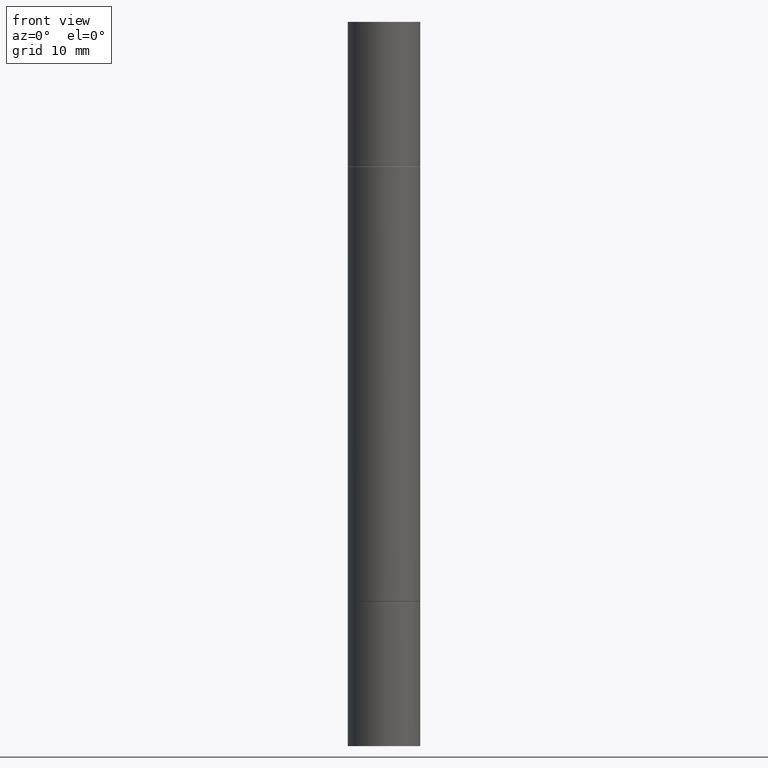
[diagram: clean part render]
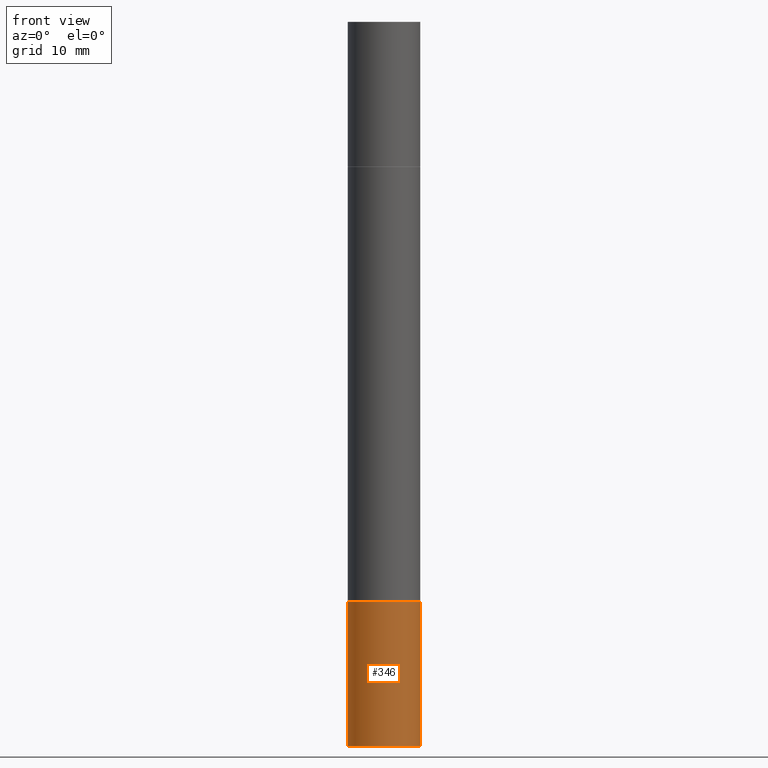
[diagram: same view with one face highlighted and labeled with its STEP entity id]
A machine part, front view. The second image highlights one B-rep face of the part: STEP entity #346.
In plain terms, the highlighted cylindrical surface (edge-blend (fillet) strip) has radius 3.175 mm, axis along (-0, 0, 1).
Its self-contained STEP definition (entity closure, byte-faithful):
#31 = DIRECTION ( 'NONE',  ( 1.000000000000000000, -6.982962677686270655E-15, 0.000000000000000000 ) ) ;
#42 = DIRECTION ( 'NONE',  ( -2.445468806185136877E-29, 3.491481338843145188E-15, 1.000000000000000000 ) ) ;
#45 = AXIS2_PLACEMENT_3D ( 'NONE', #399, #57, #559 ) ;
#57 = DIRECTION ( 'NONE',  ( -2.445468806185136597E-29, 3.491481338843145583E-15, 1.000000000000000000 ) ) ;
#59 = EDGE_CURVE ( 'NONE', #156, #207, #382, .T. ) ;
#91 = CARTESIAN_POINT ( 'NONE',  ( 0.1250000000000000000, -7.855833012397075293E-15, -2.000000000000000000 ) ) ;
#131 = ORIENTED_EDGE ( 'NONE', *, *, #278, .T. ) ;
#156 = VERTEX_POINT ( 'NONE', #172 ) ;
#166 = EDGE_CURVE ( 'NONE', #383, #156, #600, .T. ) ;
#172 = CARTESIAN_POINT ( 'NONE',  ( -0.1250000000000000000, -6.967654592696952427E-15, -2.000000000000000000 ) ) ;
#201 = EDGE_LOOP ( 'NONE', ( #357, #131, #521, #508 ) ) ;
#207 = VERTEX_POINT ( 'NONE', #91 ) ;
#239 = EDGE_CURVE ( 'NONE', #654, #207, #248, .T. ) ;
#248 = LINE ( 'NONE', #400, #275 ) ;
#274 = DIRECTION ( 'NONE',  ( -2.445468806185136597E-29, 3.491481338843145583E-15, 1.000000000000000000 ) ) ;
#275 = VECTOR ( 'NONE', #619, 39.37007874015748143 ) ;
#278 = EDGE_CURVE ( 'NONE', #383, #654, #563, .T. ) ;
#283 = AXIS2_PLACEMENT_3D ( 'NONE', #545, #552, #31 ) ;
#346 = ADVANCED_FACE ( 'NONE', ( #453 ), #560, .T. ) ;
#357 = ORIENTED_EDGE ( 'NONE', *, *, #166, .F. ) ;
#382 = CIRCLE ( 'NONE', #45, 0.1250000000000000000 ) ;
#383 = VERTEX_POINT ( 'NONE', #542 ) ;
#398 = CARTESIAN_POINT ( 'NONE',  ( 0.1250000000000000000, -9.601573681818648281E-15, -2.500000000000000000 ) ) ;
#399 = CARTESIAN_POINT ( 'NONE',  ( 4.890937612370273194E-29, -6.982962677686291165E-15, -2.000000000000000000 ) ) ;
#400 = CARTESIAN_POINT ( 'NONE',  ( 0.1250000000000000000, -8.728703347107833388E-16, 6.095220969744919741E-30 ) ) ;
#443 = AXIS2_PLACEMENT_3D ( 'NONE', #663, #274, #492 ) ;
#444 = VECTOR ( 'NONE', #42, 39.37007874015748143 ) ;
#453 = FACE_OUTER_BOUND ( 'NONE', #201, .T. ) ;
#492 = DIRECTION ( 'NONE',  ( 1.000000000000000000, -6.982962677686266711E-15, 4.876176775795935793E-29 ) ) ;
#501 = CARTESIAN_POINT ( 'NONE',  ( -0.1250000000000000000, 8.881784197001252323E-16, -6.148668862818632227E-30 ) ) ;
#508 = ORIENTED_EDGE ( 'NONE', *, *, #59, .F. ) ;
#521 = ORIENTED_EDGE ( 'NONE', *, *, #239, .T. ) ;
#542 = CARTESIAN_POINT ( 'NONE',  ( -0.1250000000000000000, -6.967654592696952427E-15, -2.500000000000000000 ) ) ;
#545 = CARTESIAN_POINT ( 'NONE',  ( 6.113672015462842613E-29, -8.728703347107864943E-15, -2.500000000000000000 ) ) ;
#552 = DIRECTION ( 'NONE',  ( -2.445468806185136597E-29, 3.491481338843145583E-15, 1.000000000000000000 ) ) ;
#559 = DIRECTION ( 'NONE',  ( 1.000000000000000000, -6.982962677686270655E-15, 0.000000000000000000 ) ) ;
#560 = CYLINDRICAL_SURFACE ( 'NONE', #443, 0.1250000000000000000 ) ;
#563 = CIRCLE ( 'NONE', #283, 0.1250000000000000000 ) ;
#600 = LINE ( 'NONE', #501, #444 ) ;
#619 = DIRECTION ( 'NONE',  ( -2.445468806185136877E-29, 3.491481338843145188E-15, 1.000000000000000000 ) ) ;
#654 = VERTEX_POINT ( 'NONE', #398 ) ;
#663 = CARTESIAN_POINT ( 'NONE',  ( 0.000000000000000000, 0.000000000000000000, 0.000000000000000000 ) ) ;